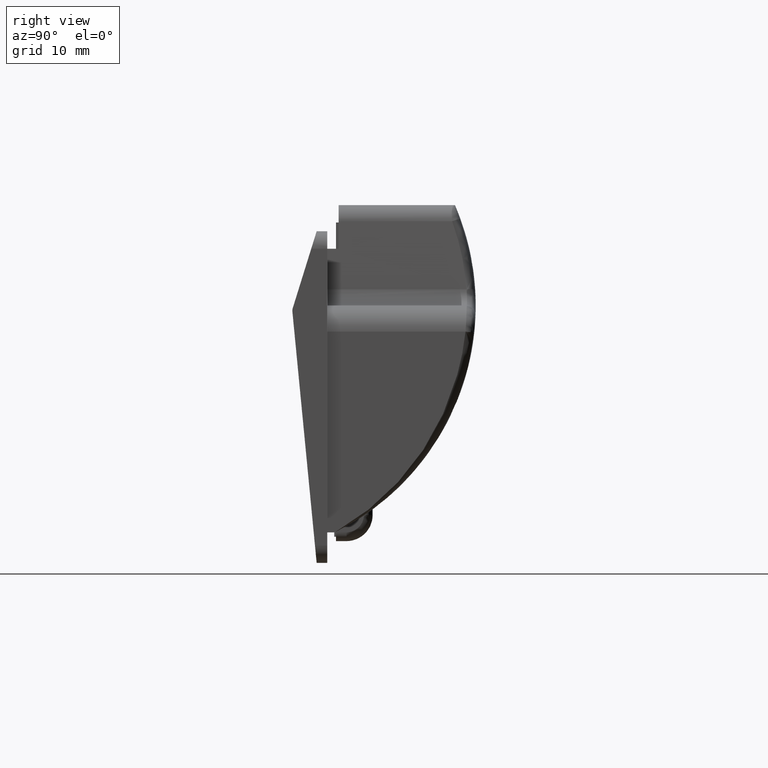
[diagram: clean part render]
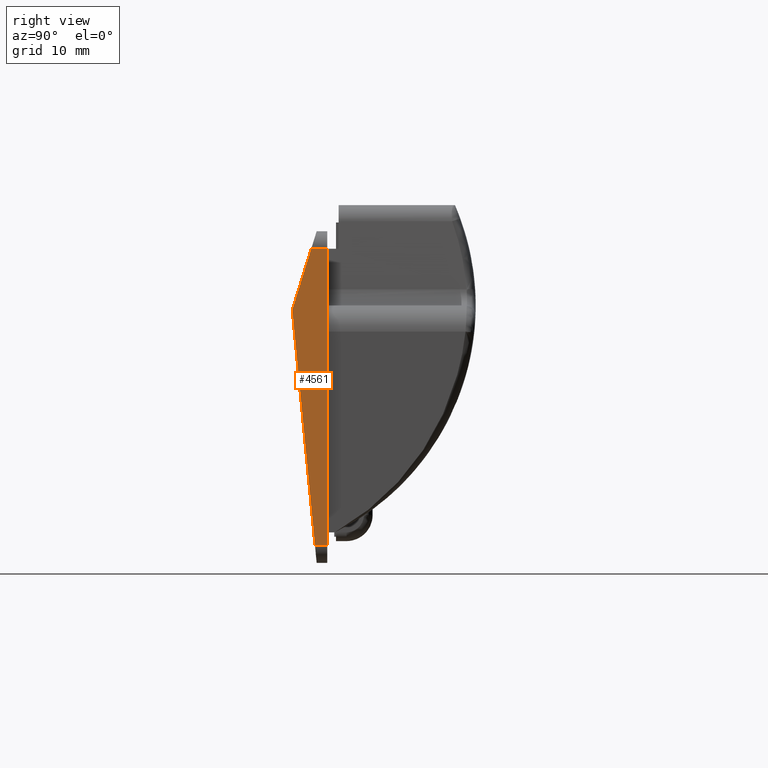
[diagram: same view with one face highlighted and labeled with its STEP entity id]
A machine part, right view. The second image highlights one B-rep face of the part: STEP entity #4561.
In plain terms, the highlighted face is a freeform B-spline surface patch.
Its self-contained STEP definition (entity closure, byte-faithful):
#1606=CARTESIAN_POINT('',(35.0,-1.407849663559050,-17.750000000000000));
#1607=VERTEX_POINT('',#1606);
#1621=CARTESIAN_POINT('',(35.0,-3.995371220189640,9.049330407958740));
#1622=VERTEX_POINT('',#1621);
#1623=CARTESIAN_POINT('',(35.0,-3.995371220189640,9.049330407958740));
#1624=CARTESIAN_POINT('',(35.0,-1.407849663559050,-17.750000000000000));
#1625=QUASI_UNIFORM_CURVE('',1,(#1623,#1624),.UNSPECIFIED.,.F.,.U.);
#1626=EDGE_CURVE('',#1622,#1607,#1625,.T.);
#4159=CARTESIAN_POINT('',(35.0,0.0,16.250000000000000));
#4160=VERTEX_POINT('',#4159);
#4181=CARTESIAN_POINT('',(35.0,-1.836968437505390,16.250000000000000));
#4182=VERTEX_POINT('',#4181);
#4196=CARTESIAN_POINT('',(35.0,0.0,16.250000000000000));
#4197=CARTESIAN_POINT('',(35.0,-1.836968437505390,16.250000000000000));
#4198=QUASI_UNIFORM_CURVE('',1,(#4196,#4197),.UNSPECIFIED.,.F.,.U.);
#4199=EDGE_CURVE('',#4160,#4182,#4198,.T.);
#4320=CARTESIAN_POINT('',(35.0,0.0,-17.750000000000000));
#4321=VERTEX_POINT('',#4320);
#4335=CARTESIAN_POINT('',(35.0,-1.407849663559050,-17.750000000000000));
#4336=CARTESIAN_POINT('',(35.0,0.0,-17.750000000000000));
#4337=QUASI_UNIFORM_CURVE('',1,(#4335,#4336),.UNSPECIFIED.,.F.,.U.);
#4338=EDGE_CURVE('',#1607,#4321,#4337,.T.);
#4526=CARTESIAN_POINT('',(35.0,-4.199793837483012,-19.448299934101399));
#4527=CARTESIAN_POINT('',(35.0,0.199799806730586,-19.448299934101399));
#4528=CARTESIAN_POINT('',(35.0,-4.199793837483012,17.948300846052469));
#4529=CARTESIAN_POINT('',(35.0,0.199799806730586,17.948300846052469));
#4530=B_SPLINE_SURFACE_WITH_KNOTS('',1,1,((#4526,#4528),(#4527,#4529)),.UNSPECIFIED.,.F.,.F.,.U.,(2,2),(2,2),(0.0,4.399593644213598),(0.0,37.396600780153882),.UNSPECIFIED.);
#4531=ORIENTED_EDGE('',*,*,#1626,.T.);
#4532=ORIENTED_EDGE('',*,*,#4338,.T.);
#4533=CARTESIAN_POINT('',(35.0,0.0,-17.750000000000000));
#4534=CARTESIAN_POINT('',(35.0,0.0,16.250000000000000));
#4535=QUASI_UNIFORM_CURVE('',1,(#4533,#4534),.UNSPECIFIED.,.F.,.U.);
#4536=EDGE_CURVE('',#4321,#4160,#4535,.T.);
#4537=ORIENTED_EDGE('',*,*,#4536,.T.);
#4538=ORIENTED_EDGE('',*,*,#4199,.T.);
#4539=CARTESIAN_POINT('',(35.0,-3.954856776330780,9.442501768061590));
#4540=VERTEX_POINT('',#4539);
#4541=CARTESIAN_POINT('',(35.0,-1.836968437505390,16.250000000000000));
#4542=CARTESIAN_POINT('',(35.0,-3.954856776330780,9.442501768061590));
#4543=QUASI_UNIFORM_CURVE('',1,(#4541,#4542),.UNSPECIFIED.,.F.,.U.);
#4544=EDGE_CURVE('',#4182,#4540,#4543,.T.);
#4545=ORIENTED_EDGE('',*,*,#4544,.T.);
#4546=CARTESIAN_POINT('',(35.0,-3.954856776330780,9.442501768061590));
#4547=CARTESIAN_POINT('',(35.0,-4.014746215283279,9.249999999999998));
#4548=CARTESIAN_POINT('',(35.0,-3.995371220189639,9.049330407958740));
#4556=(BOUNDED_CURVE()B_SPLINE_CURVE(2,(#4546,#4547,#4548),.UNSPECIFIED.,.F.,.U.)CURVE()GEOMETRIC_REPRESENTATION_ITEM()QUASI_UNIFORM_CURVE()RATIONAL_B_SPLINE_CURVE((1.0,0.980277366543990,1.0))REPRESENTATION_ITEM(''));
#4557=EDGE_CURVE('',#4540,#1622,#4556,.T.);
#4558=ORIENTED_EDGE('',*,*,#4557,.T.);
#4559=EDGE_LOOP('',(#4531,#4532,#4537,#4538,#4545,#4558));
#4560=FACE_OUTER_BOUND('',#4559,.T.);
#4561=ADVANCED_FACE('',(#4560),#4530,.T.);